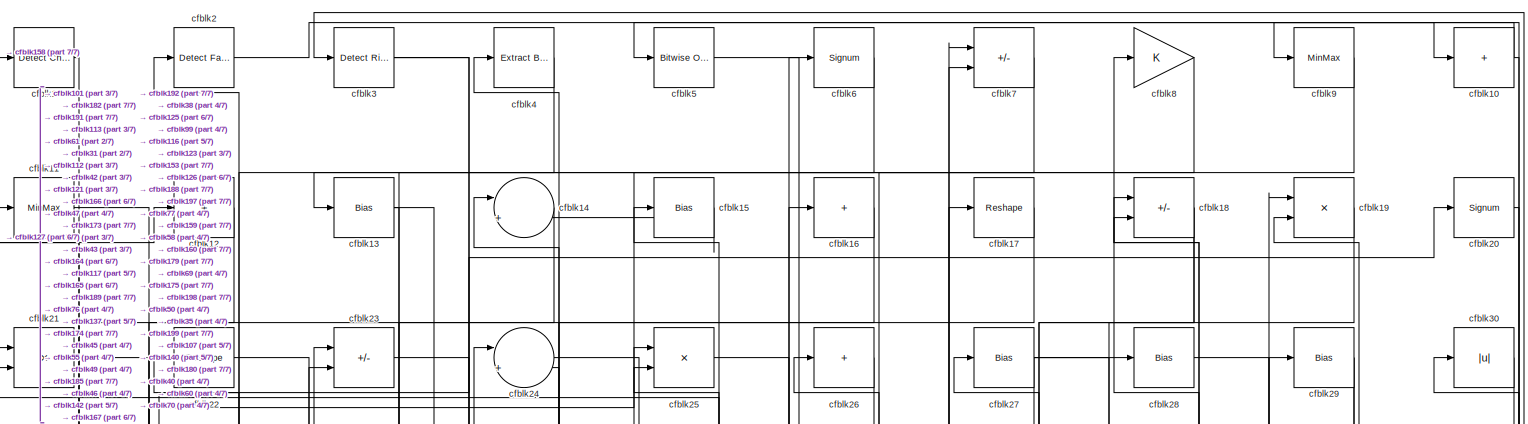
[diagram: root canvas - part 1/7, full width, top band]
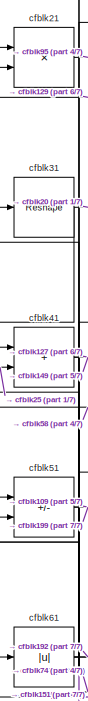
[diagram: root canvas - part 2/7, top left region]
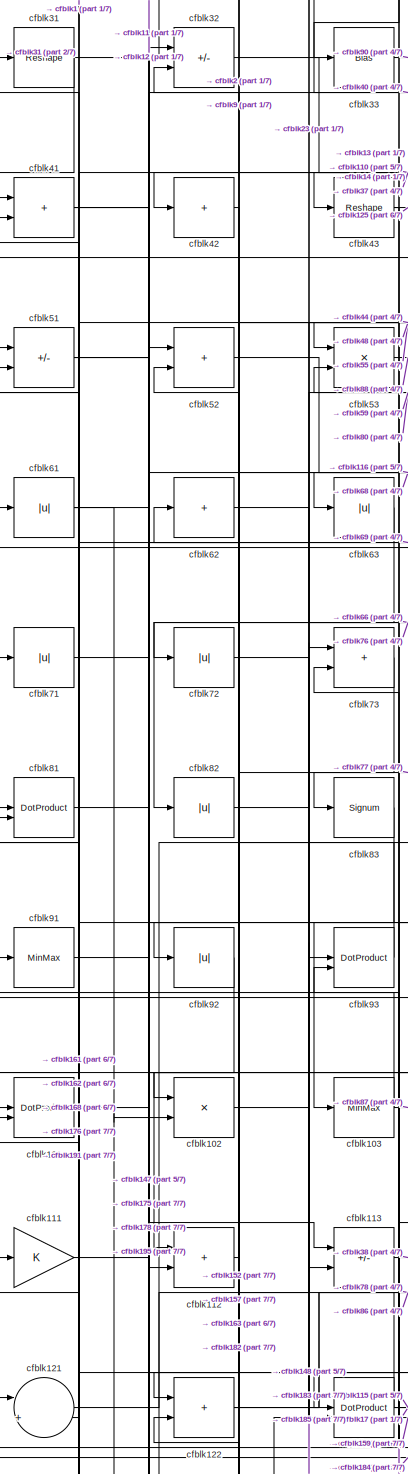
[diagram: root canvas - part 3/7, middle left region]
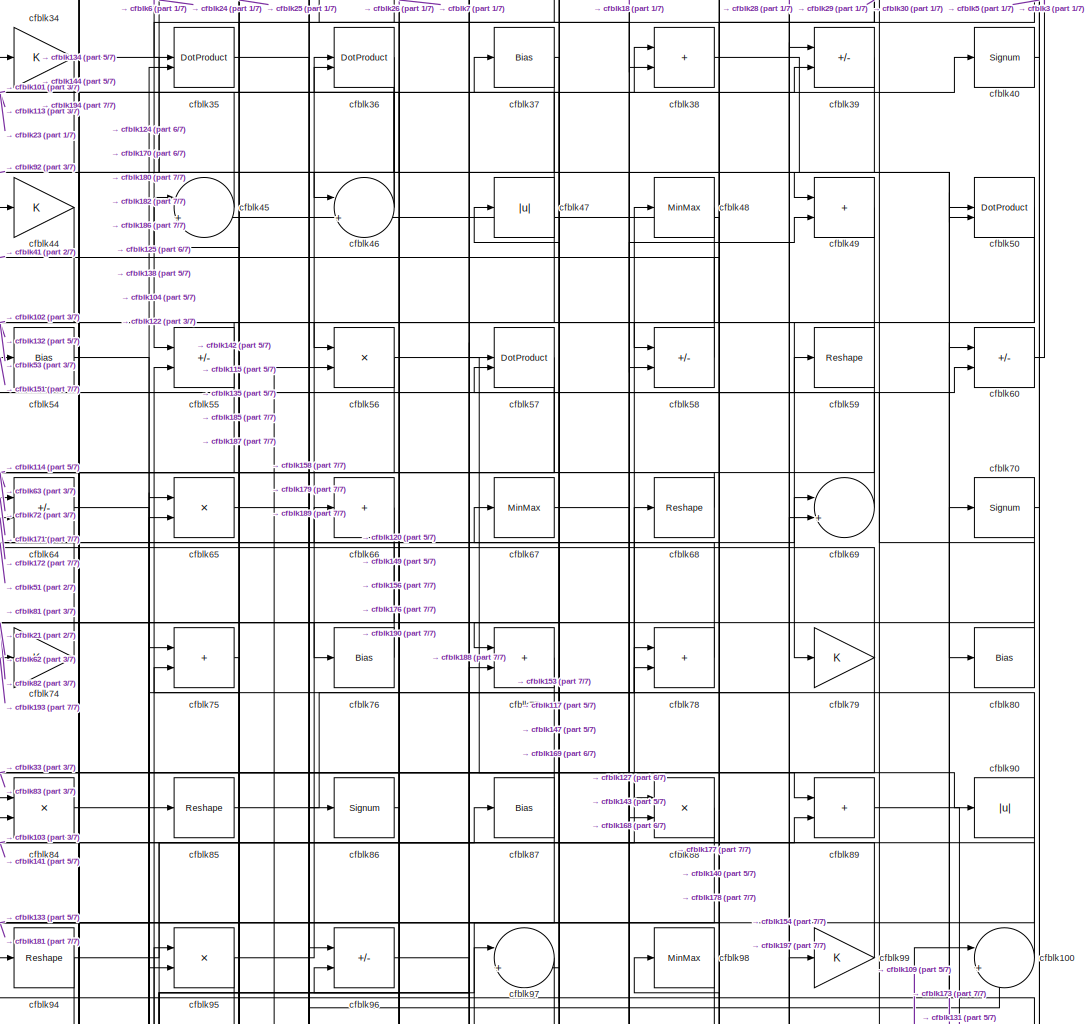
[diagram: root canvas - part 4/7, top center region]
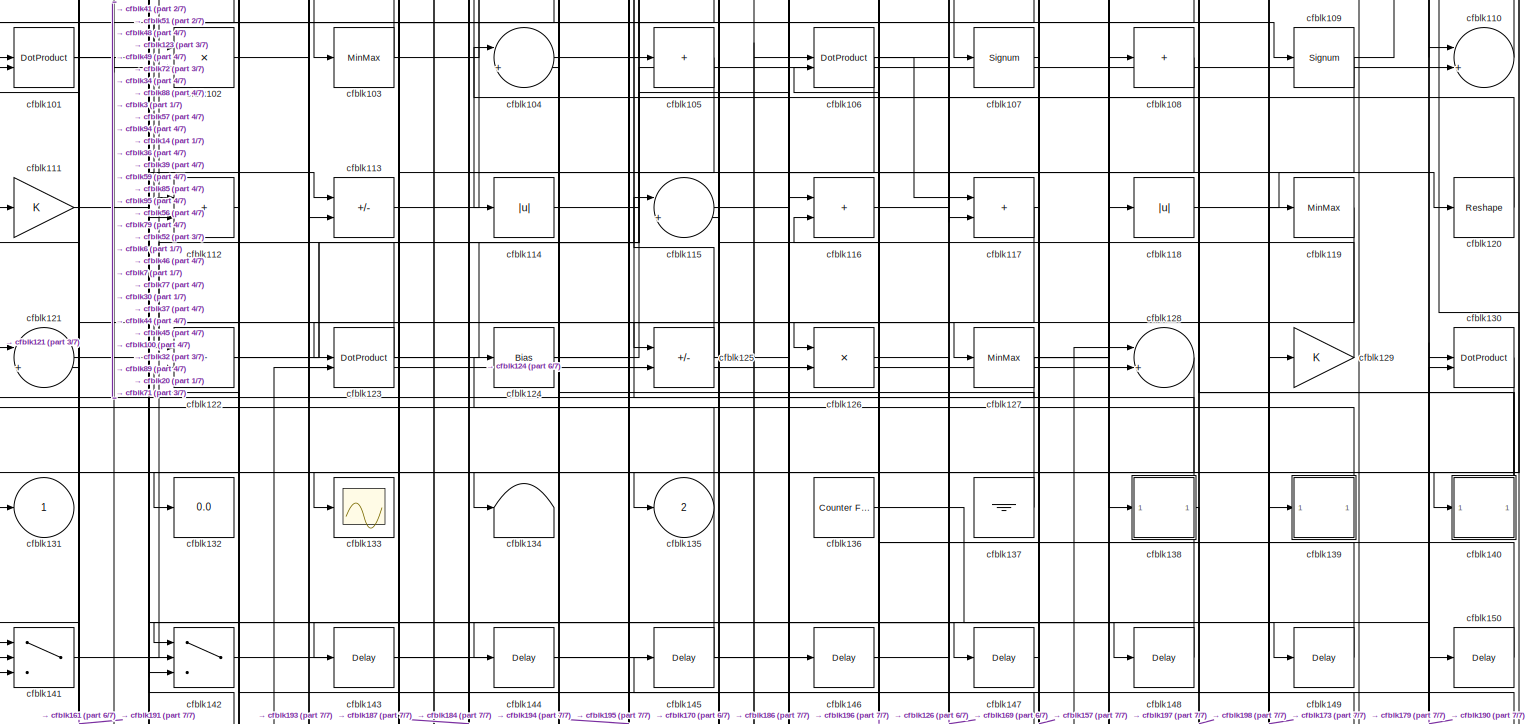
[diagram: root canvas - part 5/7, full width, middle band]
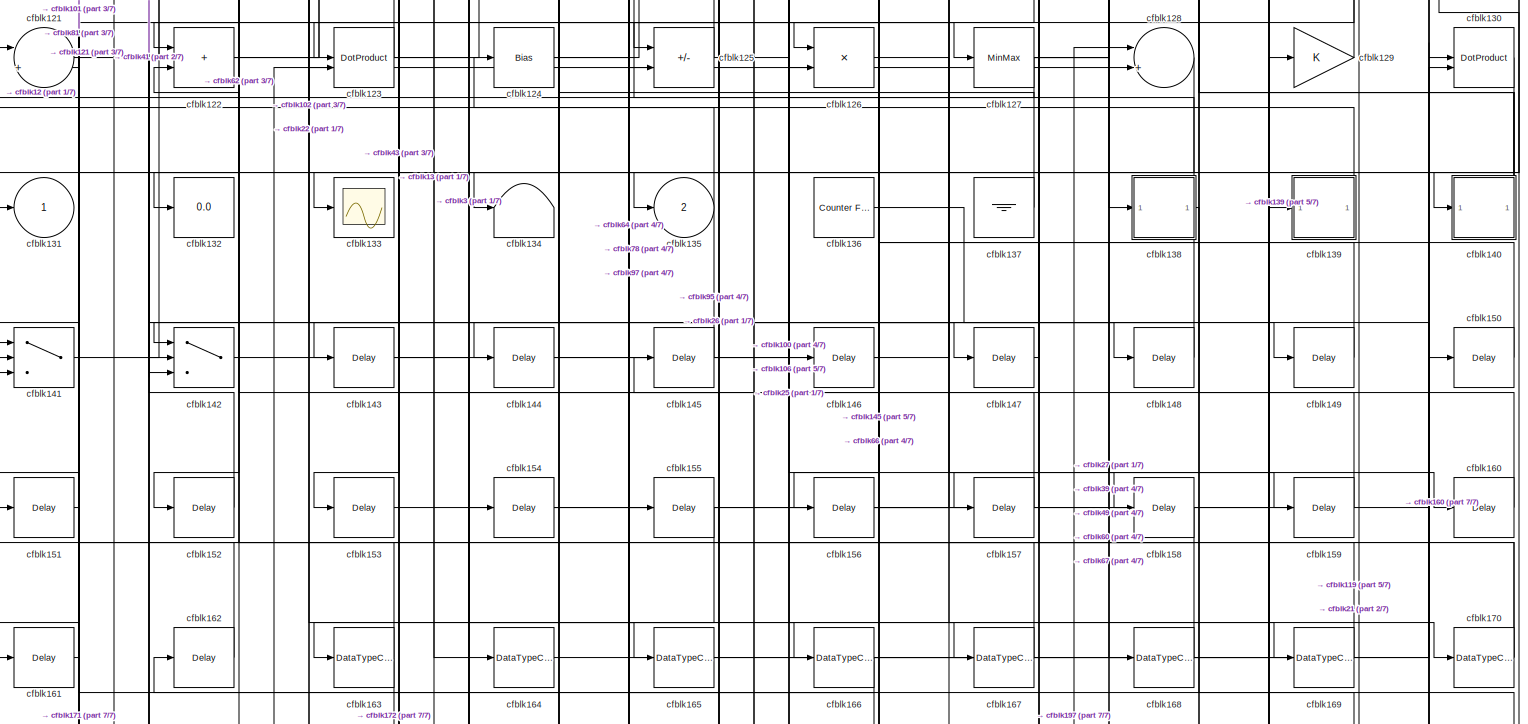
[diagram: root canvas - part 6/7, full width, bottom band]
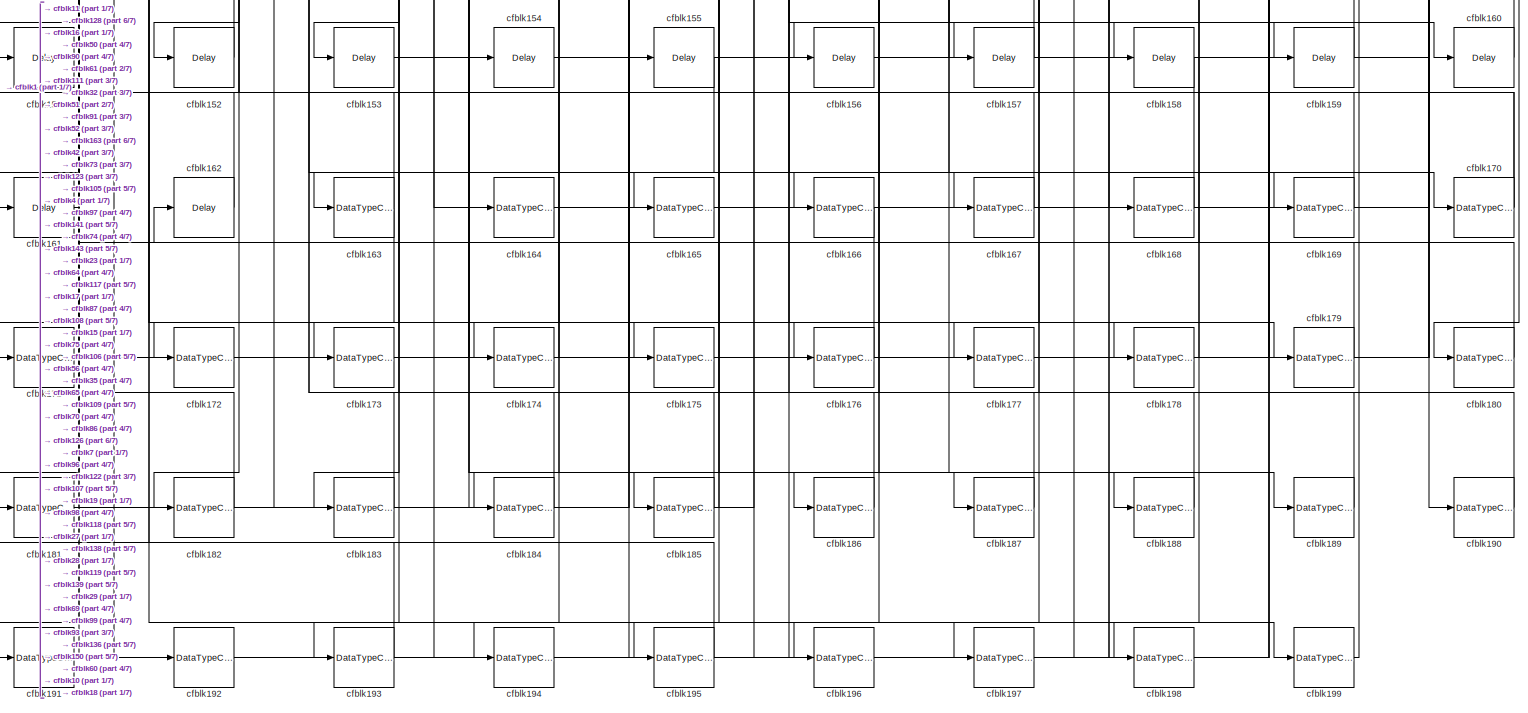
[diagram: root canvas - part 7/7, full width, bottom band]
MODEL slx_48b4e55d1e9c
KIND model
CONFIG AbsTol = auto
CONFIG EnableMultiTasking = off
CONFIG FixedStep = auto
CONFIG MaxStep = auto
CONFIG MinStep = auto
CONFIG RelTol = 1e-3
CONFIG SampleTimeConstraint = Unconstrained
CONFIG SolverName = VariableStepAuto
CONFIG StartTime = 0.0
CONFIG StopTime = 10.0
BLOCK [Reference] cfblk1  REF=simulink/Logic and Bit
Operations/Detect
Change
  LibrarySourceBlock = hdlsllib/Logic and Bit\nOperations/Detect\nChange
  SourceBlock = simulink/Logic and Bit\nOperations/Detect\nChange
  SourceType = Detect Change
BLOCK [Sum] cfblk10
  IconShape = rectangular
  Inputs = +
BLOCK [Sum] cfblk100
  Inputs = |++
BLOCK [DotProduct] cfblk101
  OutDataTypeStr = Inherit: Inherit via internal rule
BLOCK [Product] cfblk102
  Inputs = */
  RndMeth = Zero
  SaturateOnIntegerOverflow = on
BLOCK [MinMax] cfblk103
BLOCK [Sum] cfblk104
  Inputs = |++
BLOCK [Sum] cfblk105
  IconShape = rectangular
  Inputs = +
BLOCK [DotProduct] cfblk106
  OutDataTypeStr = Inherit: Inherit via internal rule
BLOCK [Signum] cfblk107
BLOCK [Sum] cfblk108
  IconShape = rectangular
  Inputs = +
BLOCK [Signum] cfblk109
BLOCK [MinMax] cfblk11
BLOCK [Sum] cfblk110
  Inputs = |++
BLOCK [Gain] cfblk111
BLOCK [Sum] cfblk112
  IconShape = rectangular
BLOCK [Sum] cfblk113
  IconShape = rectangular
  Inputs = +-
BLOCK [Abs] cfblk114
  SaturateOnIntegerOverflow = off
BLOCK [Sum] cfblk115
  Inputs = |++
BLOCK [Sum] cfblk116
  IconShape = rectangular
BLOCK [Sum] cfblk117
  IconShape = rectangular
BLOCK [Abs] cfblk118
  SaturateOnIntegerOverflow = off
BLOCK [MinMax] cfblk119
BLOCK [Sum] cfblk12
  IconShape = rectangular
  Inputs = +
BLOCK [Reshape] cfblk120
BLOCK [Sum] cfblk121
  Inputs = |++
BLOCK [Sum] cfblk122
  IconShape = rectangular
BLOCK [DotProduct] cfblk123
  OutDataTypeStr = Inherit: Inherit via internal rule
BLOCK [Bias] cfblk124
  Bias = 0.0
  SaturateOnIntegerOverflow = off
BLOCK [Sum] cfblk125
  IconShape = rectangular
  Inputs = +-
BLOCK [Product] cfblk126
  Inputs = */
  RndMeth = Zero
  SaturateOnIntegerOverflow = on
BLOCK [MinMax] cfblk127
BLOCK [Sum] cfblk128
  Inputs = |++
BLOCK [Gain] cfblk129
BLOCK [Bias] cfblk13
  Bias = 0.0
  SaturateOnIntegerOverflow = off
BLOCK [DotProduct] cfblk130
  OutDataTypeStr = Inherit: Inherit via internal rule
BLOCK [Outport] cfblk131
  VectorParamsAs1DForOutWhenUnconnected = off
BLOCK [Display] cfblk132
  Decimation = 1
BLOCK [Scope] cfblk133
  Floating = off
  NumInputPorts = 1
  ScopeSpecificationString = Simulink.scopes.TimeScopeBlockCfg('CurrentConfiguration', extmgr.ConfigurationSet(extmgr.Configuration('Core','General UI',true),extmgr.Configuration('Core','Source UI',true),extmgr.Configuration('Sources','WiredSimulink',true,'DataLoggingVariableName','ScopeData2','DataLoggingSaveFormat','Array','DataLoggingLimitDataPoints',true,'DataLoggingDecimation','1'),extmgr.Configuration('Visuals','Time Do...<+868ch>
BLOCK [Terminator] cfblk134
BLOCK [Outport] cfblk135
  Port = 2
  VectorParamsAs1DForOutWhenUnconnected = off
BLOCK [Reference] cfblk136  REF=hdlsllib/Sources/Counter
Free-Running
  SourceBlock = hdlsllib/Sources/Counter\nFree-Running
  SourceType = Counter Free-Running
BLOCK [Ground] cfblk137
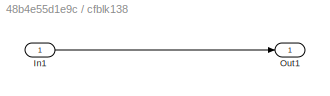
BLOCK [SubSystem] cfblk138
  LibrarySourceBlock = hdlsllib/Ports &\nSubsystems/Subsystem
BLOCK [Inport] cfblk138/In1
BLOCK [Outport] cfblk138/Out1
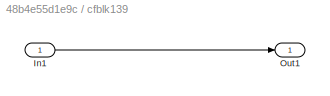
BLOCK [SubSystem] cfblk139
  LibrarySourceBlock = hdlsllib/Ports &\nSubsystems/Subsystem
BLOCK [Inport] cfblk139/In1
BLOCK [Outport] cfblk139/Out1
BLOCK [Sum] cfblk14
  Inputs = |++
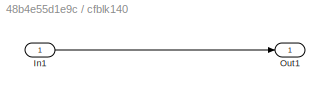
BLOCK [SubSystem] cfblk140
  LibrarySourceBlock = hdlsllib/Ports &\nSubsystems/Subsystem
BLOCK [Inport] cfblk140/In1
BLOCK [Outport] cfblk140/Out1
BLOCK [Switch] cfblk141
  InputSameDT = off
  SaturateOnIntegerOverflow = off
BLOCK [Switch] cfblk142
  InputSameDT = off
  SaturateOnIntegerOverflow = off
BLOCK [Delay] cfblk143
  InputPortMap = u0
  SampleTime = 1
BLOCK [Delay] cfblk144
  InputPortMap = u0
  SampleTime = 1
BLOCK [Delay] cfblk145
  InputPortMap = u0
  SampleTime = 1
BLOCK [Delay] cfblk146
  InputPortMap = u0
  SampleTime = 1
BLOCK [Delay] cfblk147
  InputPortMap = u0
  SampleTime = 1
BLOCK [Delay] cfblk148
  InputPortMap = u0
  SampleTime = 1
BLOCK [Delay] cfblk149
  InputPortMap = u0
  SampleTime = 1
BLOCK [Bias] cfblk15
  Bias = 0.0
  SaturateOnIntegerOverflow = off
BLOCK [Delay] cfblk150
  InputPortMap = u0
  SampleTime = 1
BLOCK [Delay] cfblk151
  InputPortMap = u0
  SampleTime = 1
BLOCK [Delay] cfblk152
  InputPortMap = u0
  SampleTime = 1
BLOCK [Delay] cfblk153
  InputPortMap = u0
  SampleTime = 1
BLOCK [Delay] cfblk154
  InputPortMap = u0
  SampleTime = 1
BLOCK [Delay] cfblk155
  InputPortMap = u0
  SampleTime = 1
BLOCK [Delay] cfblk156
  InputPortMap = u0
  SampleTime = 1
BLOCK [Delay] cfblk157
  InputPortMap = u0
  SampleTime = 1
BLOCK [Delay] cfblk158
  InputPortMap = u0
  SampleTime = 1
BLOCK [Delay] cfblk159
  InputPortMap = u0
  SampleTime = 1
BLOCK [Sum] cfblk16
  IconShape = rectangular
  Inputs = +
BLOCK [Delay] cfblk160
  InputPortMap = u0
  SampleTime = 1
BLOCK [Delay] cfblk161
  InputPortMap = u0
  SampleTime = 1
BLOCK [Delay] cfblk162
  InputPortMap = u0
  SampleTime = 1
BLOCK [DataTypeConversion] cfblk163
  RndMeth = Floor
  SaturateOnIntegerOverflow = off
BLOCK [DataTypeConversion] cfblk164
  OutDataTypeStr = uint8
  RndMeth = Floor
  SaturateOnIntegerOverflow = off
BLOCK [DataTypeConversion] cfblk165
  OutDataTypeStr = uint8
  RndMeth = Floor
  SaturateOnIntegerOverflow = off
BLOCK [DataTypeConversion] cfblk166
  RndMeth = Floor
  SaturateOnIntegerOverflow = off
BLOCK [DataTypeConversion] cfblk167
  OutDataTypeStr = uint8
  RndMeth = Floor
  SaturateOnIntegerOverflow = off
BLOCK [DataTypeConversion] cfblk168
  OutDataTypeStr = uint8
  RndMeth = Floor
  SaturateOnIntegerOverflow = off
BLOCK [DataTypeConversion] cfblk169
  OutDataTypeStr = uint8
  RndMeth = Floor
  SaturateOnIntegerOverflow = off
BLOCK [Reshape] cfblk17
BLOCK [DataTypeConversion] cfblk170
  RndMeth = Floor
  SaturateOnIntegerOverflow = off
BLOCK [DataTypeConversion] cfblk171
  OutDataTypeStr = uint8
  RndMeth = Floor
  SaturateOnIntegerOverflow = off
BLOCK [DataTypeConversion] cfblk172
  OutDataTypeStr = uint8
  RndMeth = Floor
  SaturateOnIntegerOverflow = off
BLOCK [DataTypeConversion] cfblk173
  RndMeth = Floor
  SaturateOnIntegerOverflow = off
BLOCK [DataTypeConversion] cfblk174
  OutDataTypeStr = uint8
  RndMeth = Floor
  SaturateOnIntegerOverflow = off
BLOCK [DataTypeConversion] cfblk175
  OutDataTypeStr = uint8
  RndMeth = Floor
  SaturateOnIntegerOverflow = off
BLOCK [DataTypeConversion] cfblk176
  OutDataTypeStr = uint8
  RndMeth = Floor
  SaturateOnIntegerOverflow = off
BLOCK [DataTypeConversion] cfblk177
  OutDataTypeStr = uint8
  RndMeth = Floor
  SaturateOnIntegerOverflow = off
BLOCK [DataTypeConversion] cfblk178
  OutDataTypeStr = uint8
  RndMeth = Floor
  SaturateOnIntegerOverflow = off
BLOCK [DataTypeConversion] cfblk179
  RndMeth = Floor
  SaturateOnIntegerOverflow = off
BLOCK [Sum] cfblk18
  IconShape = rectangular
  Inputs = +-
BLOCK [DataTypeConversion] cfblk180
  OutDataTypeStr = uint8
  RndMeth = Floor
  SaturateOnIntegerOverflow = off
BLOCK [DataTypeConversion] cfblk181
  OutDataTypeStr = uint8
  RndMeth = Floor
  SaturateOnIntegerOverflow = off
BLOCK [DataTypeConversion] cfblk182
  RndMeth = Floor
  SaturateOnIntegerOverflow = off
BLOCK [DataTypeConversion] cfblk183
  OutDataTypeStr = uint8
  RndMeth = Floor
  SaturateOnIntegerOverflow = off
BLOCK [DataTypeConversion] cfblk184
  OutDataTypeStr = uint8
  RndMeth = Floor
  SaturateOnIntegerOverflow = off
BLOCK [DataTypeConversion] cfblk185
  RndMeth = Floor
  SaturateOnIntegerOverflow = off
BLOCK [DataTypeConversion] cfblk186
  OutDataTypeStr = uint8
  RndMeth = Floor
  SaturateOnIntegerOverflow = off
BLOCK [DataTypeConversion] cfblk187
  OutDataTypeStr = uint8
  RndMeth = Floor
  SaturateOnIntegerOverflow = off
BLOCK [DataTypeConversion] cfblk188
  OutDataTypeStr = uint8
  RndMeth = Floor
  SaturateOnIntegerOverflow = off
BLOCK [DataTypeConversion] cfblk189
  OutDataTypeStr = uint8
  RndMeth = Floor
  SaturateOnIntegerOverflow = off
BLOCK [Product] cfblk19
  Inputs = */
  RndMeth = Zero
  SaturateOnIntegerOverflow = on
BLOCK [DataTypeConversion] cfblk190
  OutDataTypeStr = uint8
  RndMeth = Floor
  SaturateOnIntegerOverflow = off
BLOCK [DataTypeConversion] cfblk191
  RndMeth = Floor
  SaturateOnIntegerOverflow = off
BLOCK [DataTypeConversion] cfblk192
  OutDataTypeStr = uint8
  RndMeth = Floor
  SaturateOnIntegerOverflow = off
BLOCK [DataTypeConversion] cfblk193
  RndMeth = Floor
  SaturateOnIntegerOverflow = off
BLOCK [DataTypeConversion] cfblk194
  OutDataTypeStr = uint8
  RndMeth = Floor
  SaturateOnIntegerOverflow = off
BLOCK [DataTypeConversion] cfblk195
  RndMeth = Floor
  SaturateOnIntegerOverflow = off
BLOCK [DataTypeConversion] cfblk196
  OutDataTypeStr = uint8
  RndMeth = Floor
  SaturateOnIntegerOverflow = off
BLOCK [DataTypeConversion] cfblk197
  RndMeth = Floor
  SaturateOnIntegerOverflow = off
BLOCK [DataTypeConversion] cfblk198
  OutDataTypeStr = uint8
  RndMeth = Floor
  SaturateOnIntegerOverflow = off
BLOCK [DataTypeConversion] cfblk199
  OutDataTypeStr = uint8
  RndMeth = Floor
  SaturateOnIntegerOverflow = off
BLOCK [Reference] cfblk2  REF=hdlsllib/Logic and Bit
Operations/Detect Fall
Negative
  SourceBlock = hdlsllib/Logic and Bit\nOperations/Detect Fall\nNegative
  SourceType = Detect Fall Negative
BLOCK [Signum] cfblk20
BLOCK [Product] cfblk21
  Inputs = */
  RndMeth = Zero
  SaturateOnIntegerOverflow = on
BLOCK [Reshape] cfblk22
BLOCK [Sum] cfblk23
  IconShape = rectangular
  Inputs = +-
BLOCK [Sum] cfblk24
  Inputs = |++
BLOCK [Product] cfblk25
  Inputs = */
  RndMeth = Zero
  SaturateOnIntegerOverflow = on
BLOCK [Sum] cfblk26
  IconShape = rectangular
  Inputs = +
BLOCK [Bias] cfblk27
  Bias = 0.0
  SaturateOnIntegerOverflow = off
BLOCK [Bias] cfblk28
  Bias = 0.0
  SaturateOnIntegerOverflow = off
BLOCK [Bias] cfblk29
  Bias = 0.0
  SaturateOnIntegerOverflow = off
BLOCK [Reference] cfblk3  REF=hdlsllib/Logic and Bit
Operations/Detect Rise
Nonnegative
  SourceBlock = hdlsllib/Logic and Bit\nOperations/Detect Rise\nNonnegative
  SourceType = Detect Rise Nonnegative
BLOCK [Abs] cfblk30
  SaturateOnIntegerOverflow = off
BLOCK [Reshape] cfblk31
BLOCK [Sum] cfblk32
  IconShape = rectangular
  Inputs = +-
BLOCK [Bias] cfblk33
  Bias = 0.0
  SaturateOnIntegerOverflow = off
BLOCK [Gain] cfblk34
BLOCK [DotProduct] cfblk35
  OutDataTypeStr = Inherit: Inherit via internal rule
BLOCK [DotProduct] cfblk36
  OutDataTypeStr = Inherit: Inherit via internal rule
BLOCK [Bias] cfblk37
  Bias = 0.0
  SaturateOnIntegerOverflow = off
BLOCK [Sum] cfblk38
  IconShape = rectangular
BLOCK [Sum] cfblk39
  IconShape = rectangular
  Inputs = +-
BLOCK [Reference] cfblk4  REF=simulink/Logic and Bit
Operations/Extract Bits
  LibrarySourceBlock = hdlsllib/Logic and Bit\nOperations/Extract Bits
  SourceBlock = simulink/Logic and Bit\nOperations/Extract Bits
  SourceType = Extract Bits
BLOCK [Signum] cfblk40
BLOCK [Sum] cfblk41
  IconShape = rectangular
BLOCK [Sum] cfblk42
  IconShape = rectangular
  Inputs = +
BLOCK [Reshape] cfblk43
BLOCK [Gain] cfblk44
BLOCK [Sum] cfblk45
  Inputs = |++
BLOCK [Sum] cfblk46
  Inputs = |++
BLOCK [Abs] cfblk47
  SaturateOnIntegerOverflow = off
BLOCK [MinMax] cfblk48
BLOCK [Sum] cfblk49
  IconShape = rectangular
BLOCK [Reference] cfblk5  REF=simulink/Logic and Bit
Operations/Bitwise
Operator
  LibrarySourceBlock = hdlsllib/Logic and Bit\nOperations/Bitwise\nOperator
  SourceBlock = simulink/Logic and Bit\nOperations/Bitwise\nOperator
  SourceType = Bitwise Operator
BLOCK [DotProduct] cfblk50
  OutDataTypeStr = Inherit: Inherit via internal rule
BLOCK [Sum] cfblk51
  IconShape = rectangular
  Inputs = +-
BLOCK [Sum] cfblk52
  IconShape = rectangular
BLOCK [Product] cfblk53
  Inputs = */
  RndMeth = Zero
  SaturateOnIntegerOverflow = on
BLOCK [Bias] cfblk54
  Bias = 0.0
  SaturateOnIntegerOverflow = off
BLOCK [Sum] cfblk55
  IconShape = rectangular
  Inputs = +-
BLOCK [Product] cfblk56
  Inputs = */
  RndMeth = Zero
  SaturateOnIntegerOverflow = on
BLOCK [DotProduct] cfblk57
  OutDataTypeStr = Inherit: Inherit via internal rule
BLOCK [Sum] cfblk58
  IconShape = rectangular
  Inputs = +-
BLOCK [Reshape] cfblk59
BLOCK [Signum] cfblk6
BLOCK [Sum] cfblk60
  IconShape = rectangular
  Inputs = +-
BLOCK [Abs] cfblk61
  SaturateOnIntegerOverflow = off
BLOCK [Sum] cfblk62
  IconShape = rectangular
  Inputs = +
BLOCK [Abs] cfblk63
  SaturateOnIntegerOverflow = off
BLOCK [Sum] cfblk64
  IconShape = rectangular
  Inputs = +-
BLOCK [Product] cfblk65
  Inputs = */
  RndMeth = Zero
  SaturateOnIntegerOverflow = on
BLOCK [Sum] cfblk66
  IconShape = rectangular
  Inputs = +
BLOCK [MinMax] cfblk67
BLOCK [Reshape] cfblk68
BLOCK [Sum] cfblk69
  Inputs = |++
BLOCK [Sum] cfblk7
  IconShape = rectangular
  Inputs = +-
BLOCK [Signum] cfblk70
BLOCK [Abs] cfblk71
  SaturateOnIntegerOverflow = off
BLOCK [Abs] cfblk72
  SaturateOnIntegerOverflow = off
BLOCK [Sum] cfblk73
  IconShape = rectangular
BLOCK [Gain] cfblk74
BLOCK [Sum] cfblk75
  IconShape = rectangular
BLOCK [Bias] cfblk76
  Bias = 0.0
  SaturateOnIntegerOverflow = off
BLOCK [Sum] cfblk77
  IconShape = rectangular
BLOCK [Sum] cfblk78
  IconShape = rectangular
BLOCK [Gain] cfblk79
BLOCK [Gain] cfblk8
BLOCK [Bias] cfblk80
  Bias = 0.0
  SaturateOnIntegerOverflow = off
BLOCK [DotProduct] cfblk81
  OutDataTypeStr = Inherit: Inherit via internal rule
BLOCK [Abs] cfblk82
  SaturateOnIntegerOverflow = off
BLOCK [Signum] cfblk83
BLOCK [Product] cfblk84
  Inputs = */
  RndMeth = Zero
  SaturateOnIntegerOverflow = on
BLOCK [Reshape] cfblk85
BLOCK [Signum] cfblk86
BLOCK [Bias] cfblk87
  Bias = 0.0
  SaturateOnIntegerOverflow = off
BLOCK [Product] cfblk88
  Inputs = */
  RndMeth = Zero
  SaturateOnIntegerOverflow = on
BLOCK [Sum] cfblk89
  IconShape = rectangular
BLOCK [MinMax] cfblk9
BLOCK [Abs] cfblk90
  SaturateOnIntegerOverflow = off
BLOCK [MinMax] cfblk91
BLOCK [Abs] cfblk92
  SaturateOnIntegerOverflow = off
BLOCK [DotProduct] cfblk93
  OutDataTypeStr = Inherit: Inherit via internal rule
BLOCK [Reshape] cfblk94
BLOCK [Product] cfblk95
  Inputs = */
  RndMeth = Zero
  SaturateOnIntegerOverflow = on
BLOCK [Sum] cfblk96
  IconShape = rectangular
  Inputs = +-
BLOCK [Sum] cfblk97
  Inputs = |++
BLOCK [MinMax] cfblk98
BLOCK [Gain] cfblk99
LINE cfblk100:1 -> cfblk47:1
NET cfblk101:1 -> cfblk102:2, cfblk40:1, cfblk81:1
LINE cfblk102:1 -> cfblk128:2
NET cfblk103:1 -> cfblk31:1, cfblk87:1
LINE cfblk104:1 -> cfblk57:1
LINE cfblk105:1 -> cfblk193:1
NET cfblk106:1 -> cfblk117:1, cfblk126:2, cfblk169:1
LINE cfblk107:1 -> cfblk157:1
LINE cfblk108:1 -> cfblk195:1
NET cfblk109:1 -> cfblk100:1, cfblk186:1
NET cfblk10:1 -> cfblk180:1, cfblk9:1
LINE cfblk110:1 -> cfblk71:1
LINE cfblk111:1 -> cfblk178:1
LINE cfblk112:1 -> cfblk2:1
LINE cfblk113:1 -> cfblk38:1
LINE cfblk114:1 -> cfblk110:2
LINE cfblk115:1 -> cfblk146:1
LINE cfblk116:1 -> cfblk7:1
NET cfblk117:1 -> cfblk184:1, cfblk37:1
LINE cfblk118:1 -> cfblk120:1
LINE cfblk119:1 -> cfblk161:1
LINE cfblk11:1 -> cfblk113:1
LINE cfblk120:1 -> cfblk36:2
LINE cfblk121:1 -> cfblk23:2
NET cfblk122:1 -> cfblk78:1, cfblk86:1
NET cfblk123:1 -> cfblk115:1, cfblk17:1, cfblk32:2
NET cfblk124:1 -> cfblk78:2, cfblk97:1
NET cfblk125:1 -> cfblk100:2, cfblk95:1
LINE cfblk126:1 -> cfblk160:1
NET cfblk127:1 -> cfblk12:1, cfblk39:2, cfblk49:2, cfblk60:2
LINE cfblk128:1 -> cfblk171:1
LINE cfblk129:1 -> cfblk21:2
LINE cfblk12:1 -> cfblk112:2
LINE cfblk130:1 -> cfblk163:1
LINE cfblk136:1 -> cfblk190:1
LINE cfblk137:1 -> cfblk14:1
LINE cfblk138/In1:1 -> cfblk138/Out1:1
NET cfblk138:1 -> cfblk196:1, cfblk198:1, cfblk85:1
LINE cfblk139/In1:1 -> cfblk139/Out1:1
LINE cfblk139:1 -> cfblk124:1
NET cfblk13:1 -> cfblk164:1, cfblk33:1
LINE cfblk140/In1:1 -> cfblk140/Out1:1
NET cfblk140:1 -> cfblk104:1, cfblk44:1, cfblk45:2
LINE cfblk141:1 -> cfblk48:1
LINE cfblk142:1 -> cfblk6:1
LINE cfblk143:1 -> cfblk187:1
LINE cfblk144:1 -> cfblk77:2
LINE cfblk145:1 -> cfblk121:1
LINE cfblk146:1 -> cfblk116:2
LINE cfblk147:1 -> cfblk57:2
LINE cfblk148:1 -> cfblk142:1
LINE cfblk149:1 -> cfblk46:2
LINE cfblk14:1 -> cfblk43:1
LINE cfblk150:1 -> cfblk106:2
LINE cfblk151:1 -> cfblk51:2
LINE cfblk152:1 -> cfblk52:1
LINE cfblk153:1 -> cfblk7:2
LINE cfblk154:1 -> cfblk69:2
LINE cfblk155:1 -> cfblk183:1
LINE cfblk156:1 -> cfblk60:1
LINE cfblk157:1 -> cfblk122:2
LINE cfblk158:1 -> cfblk1:1
LINE cfblk159:1 -> cfblk93:2
LINE cfblk15:1 -> cfblk14:2
LINE cfblk160:1 -> cfblk18:2
LINE cfblk161:1 -> cfblk81:2
LINE cfblk162:1 -> cfblk101:2
NET cfblk163:1 -> cfblk172:1, cfblk62:1
LINE cfblk164:1 -> cfblk130:1
LINE cfblk165:1 -> cfblk130:2
NET cfblk166:1 -> cfblk129:1, cfblk162:1
LINE cfblk167:1 -> cfblk22:1
LINE cfblk168:1 -> cfblk121:2
LINE cfblk169:1 -> cfblk67:1
LINE cfblk16:1 -> cfblk191:1
NET cfblk170:1 -> cfblk145:1, cfblk66:1
LINE cfblk171:1 -> cfblk64:1
LINE cfblk172:1 -> cfblk64:2
NET cfblk173:1 -> cfblk139:1, cfblk155:1, cfblk70:1
LINE cfblk174:1 -> cfblk4:1
LINE cfblk175:1 -> cfblk29:1
LINE cfblk176:1 -> cfblk91:1
LINE cfblk177:1 -> cfblk50:1
LINE cfblk178:1 -> cfblk98:1
NET cfblk179:1 -> cfblk150:1, cfblk28:1
LINE cfblk17:1 -> cfblk174:1
LINE cfblk180:1 -> cfblk65:1
LINE cfblk181:1 -> cfblk65:2
NET cfblk182:1 -> cfblk11:1, cfblk123:2, cfblk154:1, cfblk35:2
LINE cfblk183:1 -> cfblk73:1
LINE cfblk184:1 -> cfblk73:2
NET cfblk185:1 -> cfblk15:1, cfblk56:2, cfblk93:1
LINE cfblk186:1 -> cfblk75:1
LINE cfblk187:1 -> cfblk75:2
LINE cfblk188:1 -> cfblk27:1
LINE cfblk189:1 -> cfblk96:1
NET cfblk18:1 -> cfblk58:2, cfblk77:1
LINE cfblk190:1 -> cfblk96:2
NET cfblk191:1 -> cfblk111:1, cfblk118:1
LINE cfblk192:1 -> cfblk16:1
NET cfblk193:1 -> cfblk141:2, cfblk74:1
LINE cfblk194:1 -> cfblk105:1
NET cfblk195:1 -> cfblk106:1, cfblk32:1
LINE cfblk196:1 -> cfblk108:1
NET cfblk197:1 -> cfblk119:1, cfblk128:1, cfblk99:1
LINE cfblk198:1 -> cfblk19:1
LINE cfblk199:1 -> cfblk19:2
LINE cfblk19:1 -> cfblk197:1
LINE cfblk1:1 -> cfblk101:1
LINE cfblk20:1 -> cfblk140:1
LINE cfblk21:1 -> cfblk95:2
LINE cfblk22:1 -> cfblk166:1
LINE cfblk23:1 -> cfblk189:1
LINE cfblk24:1 -> cfblk49:1
LINE cfblk25:1 -> cfblk167:1
LINE cfblk26:1 -> cfblk125:1
NET cfblk27:1 -> cfblk126:1, cfblk159:1, cfblk8:1
LINE cfblk28:1 -> cfblk50:2
NET cfblk29:1 -> cfblk35:1, cfblk58:1
LINE cfblk2:1 -> cfblk10:1
LINE cfblk30:1 -> cfblk107:1
NET cfblk31:1 -> cfblk20:1, cfblk61:1
LINE cfblk32:1 -> cfblk110:1
LINE cfblk33:1 -> cfblk90:1
NET cfblk34:1 -> cfblk138:1, cfblk143:1
LINE cfblk35:1 -> cfblk158:1
NET cfblk36:1 -> cfblk134:1, cfblk141:1, cfblk94:1
NET cfblk37:1 -> cfblk92:1, cfblk97:2
LINE cfblk38:1 -> cfblk80:1
LINE cfblk39:1 -> cfblk144:1
NET cfblk3:1 -> cfblk117:2, cfblk165:1
LINE cfblk40:1 -> cfblk5:1
NET cfblk41:1 -> cfblk127:1, cfblk149:1
LINE cfblk42:1 -> cfblk152:1
NET cfblk43:1 -> cfblk123:1, cfblk125:2
LINE cfblk44:1 -> cfblk102:1
LINE cfblk45:1 -> cfblk24:2
NET cfblk46:1 -> cfblk25:2, cfblk34:1
NET cfblk47:1 -> cfblk23:1, cfblk84:2
LINE cfblk48:1 -> cfblk113:2
LINE cfblk49:1 -> cfblk132:1
LINE cfblk4:1 -> cfblk173:1
NET cfblk50:1 -> cfblk151:1, cfblk54:1, cfblk79:1
NET cfblk51:1 -> cfblk109:1, cfblk199:1
LINE cfblk52:1 -> cfblk116:1
LINE cfblk53:1 -> cfblk88:2
LINE cfblk54:1 -> cfblk88:1
NET cfblk55:1 -> cfblk53:1, cfblk72:1
NET cfblk56:1 -> cfblk115:2, cfblk89:1
NET cfblk57:1 -> cfblk114:1, cfblk142:2
LINE cfblk58:1 -> cfblk41:1
NET cfblk59:1 -> cfblk104:2, cfblk56:1
LINE cfblk5:1 -> cfblk38:2
LINE cfblk60:1 -> cfblk3:1
NET cfblk61:1 -> cfblk192:1, cfblk25:1, cfblk41:2
LINE cfblk62:1 -> cfblk76:1
LINE cfblk63:1 -> cfblk122:1
LINE cfblk64:1 -> cfblk170:1
LINE cfblk65:1 -> cfblk179:1
LINE cfblk66:1 -> cfblk82:1
LINE cfblk67:1 -> cfblk168:1
LINE cfblk68:1 -> cfblk63:1
LINE cfblk69:1 -> cfblk18:1
LINE cfblk6:1 -> cfblk55:1
NET cfblk70:1 -> cfblk156:1, cfblk30:1
LINE cfblk71:1 -> cfblk147:1
LINE cfblk72:1 -> cfblk148:1
LINE cfblk73:1 -> cfblk182:1
LINE cfblk74:1 -> cfblk51:1
LINE cfblk75:1 -> cfblk185:1
LINE cfblk76:1 -> cfblk24:1
LINE cfblk77:1 -> cfblk83:1
LINE cfblk78:1 -> cfblk45:1
NET cfblk79:1 -> cfblk135:1, cfblk21:1
LINE cfblk7:1 -> cfblk46:1
LINE cfblk80:1 -> cfblk53:2
LINE cfblk81:1 -> cfblk69:1
LINE cfblk82:1 -> cfblk59:1
LINE cfblk83:1 -> cfblk103:1
LINE cfblk84:1 -> cfblk55:2
LINE cfblk85:1 -> cfblk39:1
LINE cfblk86:1 -> cfblk176:1
NET cfblk87:1 -> cfblk194:1, cfblk84:1
LINE cfblk88:1 -> cfblk133:1
LINE cfblk89:1 -> cfblk131:1
LINE cfblk8:1 -> cfblk13:1
NET cfblk90:1 -> cfblk181:1, cfblk68:1
LINE cfblk91:1 -> cfblk175:1
LINE cfblk92:1 -> cfblk112:1
LINE cfblk93:1 -> cfblk52:2
NET cfblk94:1 -> cfblk141:3, cfblk89:2
NET cfblk95:1 -> cfblk142:3, cfblk36:1
LINE cfblk96:1 -> cfblk188:1
LINE cfblk97:1 -> cfblk153:1
LINE cfblk98:1 -> cfblk177:1
LINE cfblk99:1 -> cfblk26:1
LINE cfblk9:1 -> cfblk42:1
note: NET lines group one-source signal fan-out (src -> all destinations, sorted); 1:1 wires keep LINE
